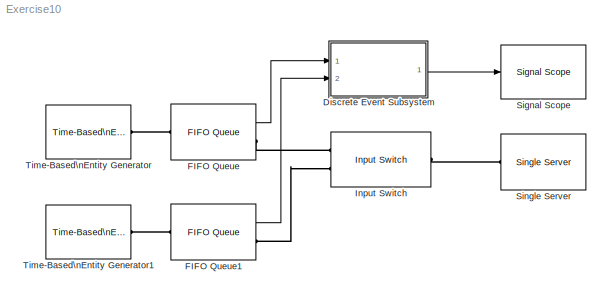
MODEL Exercise10
KIND model
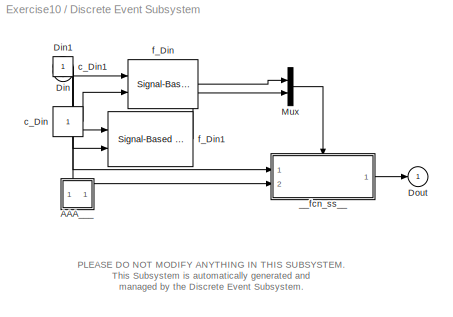
BLOCK [SubSystem] Discrete Event Subsystem
  CopyFcn = des_subsystemblock(gcb, 'copy');
  DeleteFcn = des_subsystemblock(gcb, 'delete');
  ErrorFcn = des_subsystemerror
  FunctionWithSeparateData = off
  InitFcn = des_subsystemblock(gcb, 'init');
  LoadFcn = des_subsystemblock(gcb, 'load');
  MaskHelp = helpview(simeventsbhelp);
  MaskHideContents = off
  MaskIconFrame = on
  MaskIconOpaque = on
  MaskIconRotate = none
  MaskIconUnits = autoscale
  MaskType = Discrete Event Subsystem
  MinAlgLoopOccurrences = off
  ModelCloseFcn = des_subsystemblock(gcb, 'modelclose');
  NameChangeFcn = des_subsystemblock(gcb, 'namechange');
  Opaque = off
  OpenFcn = des_subsystemblock(gcb, 'open');
  ParentCloseFcn = des_subsystemblock(gcb, 'parentclose');
  Ports = [2, 1]
  PreSaveFcn = des_subsystemblock(gcb, 'presave');
  PropExecContextOutsideSubsystem = off
  RTWSystemCode = Auto
  RequestExecContextInheritance = off
  StartFcn = des_subsystemblock(gcb, 'start');
  StopFcn = des_subsystemblock(gcb, 'stop');
  UndoDeleteFcn = des_subsystemblock(gcb, 'undodelete');
  UserData = DataTag0
  UserDataPersistent = on
BLOCK [SubSystem] Discrete Event Subsystem/AAA___
  CopyFcn = des_subsystemsupportblock(gcb, 'copy');
  DeleteFcn = des_subsystemsupportblock(gcb, 'delete');
  FunctionWithSeparateData = off
  InitFcn = des_subsystemsupportblock(gcb, 'init');
  LoadFcn = des_subsystemsupportblock(gcb, 'load');
  MaskHideContents = off
  MinAlgLoopOccurrences = off
  ModelCloseFcn = des_subsystemsupportblock(gcb, 'modelclose');
  NameChangeFcn = des_subsystemsupportblock(gcb, 'namechange');
  Opaque = off
  OpenFcn = des_subsystemsupportblock(gcb, 'open');
  ParentCloseFcn = des_subsystemsupportblock(gcb, 'parentclose');
  Ports = []
  PreSaveFcn = des_subsystemsupportblock(gcb, 'presave');
  PropExecContextOutsideSubsystem = off
  RTWSystemCode = Auto
  RequestExecContextInheritance = off
  StartFcn = des_subsystemsupportblock(gcb, 'start');
  StopFcn = des_subsystemsupportblock(gcb, 'stop');
  UndoDeleteFcn = des_subsystemsupportblock(gcb, 'undodelete');
  UserData = DataTag1
  UserDataPersistent = on
BLOCK [Inport] Discrete Event Subsystem/Din
  DataType = double
  IconDisplay = Port number
  OutDataType = sfix(16)
  OutDataTypeStr = double
  OutScaling = 2^0
  SamplingMode = Sample based
BLOCK [Inport] Discrete Event Subsystem/Din1
  DataType = double
  IconDisplay = Port number
  OutDataTypeStr = double
  Port = 2
  SamplingMode = Sample based
BLOCK [Outport] Discrete Event Subsystem/Dout
  IconDisplay = Port number
  OutDataType = sfix(16)
  OutScaling = 2^0
BLOCK [Mux] Discrete Event Subsystem/Mux
  DisplayOption = bar
  Inputs = 2
  Ports = [2, 1]
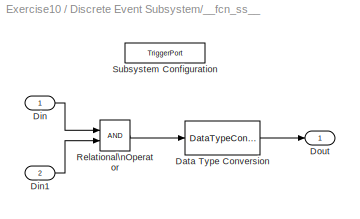
BLOCK [SubSystem] Discrete Event Subsystem/__fcn_ss__
  FunctionWithSeparateData = off
  MaskHideContents = off
  MinAlgLoopOccurrences = off
  Opaque = off
  Ports = [2, 1, 0, 1]
  PropExecContextOutsideSubsystem = on
  RTWSystemCode = Auto
  RequestExecContextInheritance = off
  TreatAsAtomicUnit = on
  UserData = DataTag2
  UserDataPersistent = on
BLOCK [DataTypeConversion] Discrete Event Subsystem/__fcn_ss__/Data Type Conversion
  OutDataType = sfix(16)
  OutDataTypeMode = double
  OutDataTypeStr = double
  OutScaling = 2^0
  RndMeth = Floor
  SaturateOnIntegerOverflow = off
BLOCK [Inport] Discrete Event Subsystem/__fcn_ss__/Din
  CopyFcn = des_subsysteminport(gcb, 'copy');
  DeleteFcn = des_subsysteminport(gcb, 'delete');
  IconDisplay = Port number
  InitFcn = des_subsysteminport(gcb, 'init');
  LoadFcn = des_subsysteminport(gcb, 'load');
  MaskCallbackString = des_subsystemmask(gcb, 'cbPermitSubsystemEvents', 'noapply');|des_subsystemmask(gcb,'cbTypeOfEvent','noapply');||des_subsystemmask(gcb, 'cbSpecifyEventPriority', 'noapply');|
  MaskDescription = Input port for a Discrete Event Subsystem block. This block can conditionally execute the subsystem upon signal-based events that meet specified criteria.
  MaskEnableString = on,on,on,on,on
  MaskHelp = helpview(simeventsbhelp);
  MaskIconFrame = on
  MaskIconOpaque = on
  MaskIconRotate = none
  MaskIconUnits = autoscale
  MaskInitialization = des_subsystemmask(gcb, 'init','apply')
  MaskPromptString = Execute subsystem upon signal-based events|Type of signal-based event:|Type of change in signal value:|Resolve simultaneous signal updates according to event priority|Event priority:
  MaskSelfModifiable = on
  MaskStyleString = checkbox,popup(Change in signal|Trigger|Sample time hit),popup(Rising|Falling|Either),checkbox,edit
  MaskTabNameString = ,,,,
  MaskToolTipString = on,on,on,on,on
  MaskTunableValueString = on,on,on,on,on
  MaskType = Discrete Event Inport
  MaskValueString = on|Sample time hit|Rising|off|20
  MaskVarAliasString = ,,,,
  MaskVariables = PermitSubsystemEvents=@1;TypeOfEvent=@2;SignalEdgeOption=@3;SpecifyEventPriority=@4;PrioritySubsystemEvent=@5;
  MaskVisibilityString = on,on,on,on,off
  ModelCloseFcn = des_subsysteminport(gcb, 'modelclose');
  NameChangeFcn = des_subsysteminport(gcb, 'namechange');
  OutDataType = sfix(16)
  OutScaling = 2^0
  ParentCloseFcn = des_subsysteminport(gcb, 'parentclose');
  PreSaveFcn = des_subsysteminport(gcb, 'presave');
  StartFcn = des_subsysteminport(gcb, 'start');
  StopFcn = des_subsysteminport(gcb, 'stop');
  UndoDeleteFcn = des_subsysteminport(gcb, 'undodelete');
  UserData = DataTag3
  UserDataPersistent = on
BLOCK [Inport] Discrete Event Subsystem/__fcn_ss__/Din1
  CopyFcn = des_subsysteminport(gcb, 'copy');
  DeleteFcn = des_subsysteminport(gcb, 'delete');
  IconDisplay = Port number
  InitFcn = des_subsysteminport(gcb, 'init');
  LoadFcn = des_subsysteminport(gcb, 'load');
  MaskCallbackString = des_subsystemmask(gcb, 'cbPermitSubsystemEvents', 'noapply');|des_subsystemmask(gcb,'cbTypeOfEvent','noapply');||des_subsystemmask(gcb, 'cbSpecifyEventPriority', 'noapply');|
  MaskDescription = Input port for a Discrete Event Subsystem block. This block can conditionally execute the subsystem upon signal-based events that meet specified criteria.
  MaskEnableString = on,on,on,on,on
  MaskHelp = helpview(simeventsbhelp);
  MaskIconFrame = on
  MaskIconOpaque = on
  MaskIconRotate = none
  MaskIconUnits = autoscale
  MaskInitialization = des_subsystemmask(gcb, 'init','apply')
  MaskPromptString = Execute subsystem upon signal-based events|Type of signal-based event:|Type of change in signal value:|Resolve simultaneous signal updates according to event priority|Event priority:
  MaskSelfModifiable = on
  MaskStyleString = checkbox,popup(Change in signal|Trigger|Sample time hit),popup(Rising|Falling|Either),checkbox,edit
  MaskTabNameString = ,,,,
  MaskToolTipString = on,on,on,on,on
  MaskTunableValueString = on,on,on,on,on
  MaskType = Discrete Event Inport
  MaskValueString = on|Sample time hit|Rising|off|20
  MaskVarAliasString = ,,,,
  MaskVariables = PermitSubsystemEvents=@1;TypeOfEvent=@2;SignalEdgeOption=@3;SpecifyEventPriority=@4;PrioritySubsystemEvent=@5;
  MaskVisibilityString = on,on,on,on,off
  ModelCloseFcn = des_subsysteminport(gcb, 'modelclose');
  NameChangeFcn = des_subsysteminport(gcb, 'namechange');
  OutDataType = sfix(16)
  OutScaling = 2^0
  ParentCloseFcn = des_subsysteminport(gcb, 'parentclose');
  Port = 2
  PreSaveFcn = des_subsysteminport(gcb, 'presave');
  StartFcn = des_subsysteminport(gcb, 'start');
  StopFcn = des_subsysteminport(gcb, 'stop');
  UndoDeleteFcn = des_subsysteminport(gcb, 'undodelete');
  UserData = DataTag4
  UserDataPersistent = on
BLOCK [Outport] Discrete Event Subsystem/__fcn_ss__/Dout
  CopyFcn = des_subsystemoutport(gcb, 'copy');
  DeleteFcn = des_subsystemoutport(gcb, 'delete');
  IconDisplay = Port number
  InitFcn = des_subsystemoutport(gcb, 'init');
  LoadFcn = des_subsystemoutport(gcb, 'load');
  MaskDescription = Provide an output port for a Discrete Event Subsystem block.
  MaskHelp = helpview(simeventsbhelp);
  MaskIconFrame = on
  MaskIconOpaque = on
  MaskIconRotate = none
  MaskIconUnits = autoscale
  MaskType = Discrete Event Outport
  ModelCloseFcn = des_subsystemoutport(gcb, 'modelclose');
  NameChangeFcn = des_subsystemoutport(gcb, 'namechange');
  OutDataType = sfix(16)
  OutScaling = 2^0
  ParentCloseFcn = des_subsystemoutport(gcb, 'parentclose');
  PreSaveFcn = des_subsystemoutport(gcb, 'presave');
  StartFcn = des_subsystemoutport(gcb, 'start');
  StopFcn = des_subsystemoutport(gcb, 'stop');
  UndoDeleteFcn = des_subsystemoutport(gcb, 'undodelete');
  UserData = DataTag6
  UserDataPersistent = on
BLOCK [RelationalOperator] Discrete Event Subsystem/__fcn_ss__/Relational\nOperator
  InputSameDT = off
  LogicOutDataTypeMode = boolean
  OutDataTypeStr = boolean
BLOCK [TriggerPort] Discrete Event Subsystem/__fcn_ss__/Subsystem Configuration
  CopyFcn = des_subsystemconfigblock(gcb, 'copy');
  DeleteFcn = des_subsystemconfigblock(gcb, 'delete');
  MaskDescription = Configuration for a Discrete Event Subsystem block. Every discrete event subsystem window must contain exactly one copy of this configuration block. Do not delete this block.
  MaskDisplay = disp('Do Not Delete');
  MaskHelp = helpview(simeventsbhelp);
  MaskIconFrame = on
  MaskIconOpaque = on
  MaskIconRotate = none
  MaskIconUnits = autoscale
  MaskType = Subsystem Configuration
  Ports = []
  StatesWhenEnabling = held
  TriggerType = function-call
  UndoDeleteFcn = des_subsystemconfigblock(gcb, 'undodelete');
  UserData = DataTag5
  UserDataPersistent = on
BLOCK [Constant] Discrete Event Subsystem/c_Din
  OutDataType = sfix(16)
  OutScaling = 2^0
BLOCK [Constant] Discrete Event Subsystem/c_Din1
BLOCK [Reference] Discrete Event Subsystem/f_Din  REF=simeventstranslate1/Signal-Based Event to\nFunction-Call Event
  DelayFunctionCall = 0
  EnableE1Port = on
  EnableE2Port = off
  EnableF2Port = off
  FunctionCallDelayFrom = Dialog
  FunctionWithSeparateData = off
  GenerateFunctionCallUpon = Sample time hit from port ts
  MaskBlockType = DESS_EVENT_PORT
  Ports = [2, 1]
  Priority = 1
  PriorityFunctionCall = 20
  RTWMemSecDataConstants = Inherit from model
  RTWMemSecDataInternal = Inherit from model
  RTWMemSecDataParameters = Inherit from model
  RTWMemSecFuncExecute = Inherit from model
  RTWMemSecFuncInitTerm = Inherit from model
  ShowPortLabels = FromPortIcon
  SignalEdgeOption = Rising
  SourceBlock = simeventstranslate1/Signal-Based Event to\nFunction-Call Event
  SourceType = Signal-Based Event to Function-Call Event
  SpecifyEventPriority = off
  StatNumberF1Calls = Off
  StatNumberF2Calls = Off
  SystemSampleTime = -1
  UserData = DataTag7
  UserDataPersistent = on
BLOCK [Reference] Discrete Event Subsystem/f_Din1  REF=simeventstranslate1/Signal-Based Event to\nFunction-Call Event
  DelayFunctionCall = 0
  EnableE1Port = on
  EnableE2Port = off
  EnableF2Port = off
  FunctionCallDelayFrom = Dialog
  FunctionWithSeparateData = off
  GenerateFunctionCallUpon = Sample time hit from port ts
  MaskBlockType = DESS_EVENT_PORT
  Ports = [2, 1]
  Priority = 1
  PriorityFunctionCall = 20
  RTWMemSecDataConstants = Inherit from model
  RTWMemSecDataInternal = Inherit from model
  RTWMemSecDataParameters = Inherit from model
  RTWMemSecFuncExecute = Inherit from model
  RTWMemSecFuncInitTerm = Inherit from model
  ShowPortLabels = FromPortIcon
  SignalEdgeOption = Rising
  SourceBlock = simeventstranslate1/Signal-Based Event to\nFunction-Call Event
  SourceType = Signal-Based Event to Function-Call Event
  SpecifyEventPriority = off
  StatNumberF1Calls = Off
  StatNumberF2Calls = Off
  SystemSampleTime = -1
  UserData = DataTag8
  UserDataPersistent = on
BLOCK [Reference] FIFO Queue  REF=simeventsqueue1/FIFO Queue
  Capacity = 25
  EnableTOPort = off
  FunctionWithSeparateData = off
  Ports = [0, 1, 0, 0, 0, 1, 1]
  Priority = 1
  RTWMemSecDataConstants = Inherit from model
  RTWMemSecDataInternal = Inherit from model
  RTWMemSecDataParameters = Inherit from model
  RTWMemSecFuncExecute = Inherit from model
  RTWMemSecFuncInitTerm = Inherit from model
  ShowPortLabels = FromPortIcon
  SourceBlock = simeventsqueue1/FIFO Queue
  SourceType = FIFO Queue
  StatAverageQueueLength = Off
  StatAverageWait = Off
  StatNumberDeparted = Off
  StatNumberInBlock = On
  StatNumberTimedout = Off
  StatPendingEntity = Off
  SystemSampleTime = -1
  UserData = DataTag9
  UserDataPersistent = on
BLOCK [Reference] FIFO Queue1  REF=simeventsqueue1/FIFO Queue
  Capacity = 25
  EnableTOPort = off
  FunctionWithSeparateData = off
  Ports = [0, 1, 0, 0, 0, 1, 1]
  Priority = 1
  RTWMemSecDataConstants = Inherit from model
  RTWMemSecDataInternal = Inherit from model
  RTWMemSecDataParameters = Inherit from model
  RTWMemSecFuncExecute = Inherit from model
  RTWMemSecFuncInitTerm = Inherit from model
  ShowPortLabels = FromPortIcon
  SourceBlock = simeventsqueue1/FIFO Queue
  SourceType = FIFO Queue
  StatAverageQueueLength = Off
  StatAverageWait = Off
  StatNumberDeparted = Off
  StatNumberInBlock = On
  StatNumberTimedout = Off
  StatPendingEntity = Off
  SystemSampleTime = -1
  UserData = DataTag10
  UserDataPersistent = on
BLOCK [Reference] Input Switch  REF=simeventsrouting1/Input Switch
  EvaluatedNumPorts = 2
  FunctionWithSeparateData = off
  InitialSeed = 23453
  NumberInputPorts = 2
  Ports = [0, 0, 0, 0, 0, 2, 1]
  Priority = 1
  PriorityInputSwitchSelectPort = 4000
  RTWMemSecDataConstants = Inherit from model
  RTWMemSecDataInternal = Inherit from model
  RTWMemSecDataParameters = Inherit from model
  RTWMemSecFuncExecute = Inherit from model
  RTWMemSecFuncInitTerm = Inherit from model
  ShowPortLabels = FromPortIcon
  SourceBlock = simeventsrouting1/Input Switch
  SourceType = Input Switch
  SpecifyEventPriority = off
  StatLastArrivalPort = Off
  StatNumberDeparted = Off
  SwitchingCriterion = Round robin
  SystemSampleTime = -1
  UserData = DataTag11
  UserDataPersistent = on
BLOCK [Reference] Signal Scope  REF=simeventssink1/Signal Scope
  AttributeNameX = Count
  AttributeNameY = Count
  AxisGrid = on
  AxisLegend = off
  AxisZoom = off
  DataPointsLimit = 10000
  DataStoreOption = Limited
  EnableEntityOutport = on
  FigurePosition = des_figposition([5 60 25 25])
  FunctionWithSeparateData = off
  InputType = Signal
  LineColors = b
  LineMarkers = .
  LineStyles = -
  NumInputs = 1
  OpenScopeAtSimStart = on
  PlotType = Stair
  Ports = [1]
  Priority = 1
  RTWMemSecDataConstants = Inherit from model
  RTWMemSecDataInternal = Inherit from model
  RTWMemSecDataParameters = Inherit from model
  RTWMemSecFuncExecute = Inherit from model
  RTWMemSecFuncInitTerm = Inherit from model
  ShowCountPlotted = off
  ShowPortLabels = FromPortIcon
  ShowToolbar = on
  SourceBlock = simeventssink1/Signal Scope
  SourceType = Signal Scope
  StatNumberArrived = Off
  SystemSampleTime = -1
  UserData = DataTag12
  UserDataPersistent = on
  XInputOptionEntity = Event time
  XInputOptionSignal = Event time
  XLabel = Time
  XLimitExceededOption = Stretch axis limits
  XMax = 10
  XMin = 0
  YLimitExceededOption = Stretch axis limits
  YMax = 10
  YMin = 0
BLOCK [Reference] Single Server  REF=simeventsserver1/Single Server
  AttributeName = ServiceTime
  CreateAttribute = on
  EnableTOPort = off
  FunctionWithSeparateData = off
  PermitPreemption = off
  Ports = [0, 0, 0, 0, 0, 1, 1]
  Priority = 1
  PriorityServiceCompletion = 500
  RTWMemSecDataConstants = Inherit from model
  RTWMemSecDataInternal = Inherit from model
  RTWMemSecDataParameters = Inherit from model
  RTWMemSecFuncExecute = Inherit from model
  RTWMemSecFuncInitTerm = Inherit from model
  ResidualAttributeName = ResidualServiceTime
  ServiceTime = 1
  ServiceTimeFrom = Dialog
  ShowPortLabels = FromPortIcon
  SortingAttributeName = PriorityAttributeName
  SortingDirection = Ascending
  SourceBlock = simeventsserver1/Single Server
  SourceType = Single Server
  StatAverageWait = Off
  StatNumberDeparted = Off
  StatNumberInBlock = Off
  StatNumberPreempted = Off
  StatNumberTimedout = Off
  StatPendingEntity = Off
  StatUtilization = Off
  SystemSampleTime = -1
  UserData = DataTag13
  UserDataPersistent = on
  WriteToAttribute = off
BLOCK [Reference] Time-Based\nEntity Generator  REF=simeventsgenerators1/Entity Generators/Time-Based\nEntity Generator
  DialogController = des_ddg_create
  DialogControllerArgs = DataTag15
  Distribution = Constant
  EntityType = Blank
  FunctionWithSeparateData = off
  GenerateEntitiesUpon = Intergeneration time from dialog
  GenerateEntityAtSimulationStart = on
  InitialSeed = 12345
  Maximum = 1
  Mean = 1
  Minimum = 0
  Period = 1
  Ports = [0, 0, 0, 0, 0, 0, 1]
  Priority = 1
  PriorityEntityGeneration = 300
  RTWMemSecDataConstants = Inherit from model
  RTWMemSecDataInternal = Inherit from model
  RTWMemSecDataParameters = Inherit from model
  RTWMemSecFuncExecute = Inherit from model
  RTWMemSecFuncInitTerm = Inherit from model
  ResponseWhenBlocked = Pause generation
  ResponseWhenUnblocked = Immediate restart
  ShowPortLabels = FromPortIcon
  SourceBlock = simeventsgenerators1/Entity Generators/Time-Based\nEntity Generator
  SourceType = Time-Based Entity Generator
  StatAverageIntergenerationTime = Off
  StatNumberDeparted = Off
  StatPendingEntity = Off
  SystemSampleTime = -1
  UserData = DataTag14
  UserDataPersistent = on
BLOCK [Reference] Time-Based\nEntity Generator1  REF=simeventsgenerators1/Entity Generators/Time-Based\nEntity Generator
  DialogController = des_ddg_create
  DialogControllerArgs = DataTag17
  Distribution = Constant
  EntityType = Blank
  FunctionWithSeparateData = off
  GenerateEntitiesUpon = Intergeneration time from dialog
  GenerateEntityAtSimulationStart = on
  InitialSeed = 12345
  Maximum = 1
  Mean = 1
  Minimum = 0
  Period = 1
  Ports = [0, 0, 0, 0, 0, 0, 1]
  Priority = 1
  PriorityEntityGeneration = 300
  RTWMemSecDataConstants = Inherit from model
  RTWMemSecDataInternal = Inherit from model
  RTWMemSecDataParameters = Inherit from model
  RTWMemSecFuncExecute = Inherit from model
  RTWMemSecFuncInitTerm = Inherit from model
  ResponseWhenBlocked = Pause generation
  ResponseWhenUnblocked = Immediate restart
  ShowPortLabels = FromPortIcon
  SourceBlock = simeventsgenerators1/Entity Generators/Time-Based\nEntity Generator
  SourceType = Time-Based Entity Generator
  StatAverageIntergenerationTime = Off
  StatNumberDeparted = Off
  StatPendingEntity = Off
  SystemSampleTime = -1
  UserData = DataTag16
  UserDataPersistent = on
ANNOTATION Discrete Event Subsystem: PLEASE DO NOT MODIFY ANYTHING IN THIS SUBSYSTEM.\nThis Subsystem is automatically generated and \nmanaged by the Discrete Event Subsystem.
NET Discrete Event Subsystem/Din1:1 -> Discrete Event Subsystem/__fcn_ss__:2, Discrete Event Subsystem/f_Din1:1
NET Discrete Event Subsystem/Din:1 -> Discrete Event Subsystem/__fcn_ss__:1, Discrete Event Subsystem/f_Din:1
LINE Discrete Event Subsystem/Mux:1 -> Discrete Event Subsystem/__fcn_ss__:trigger
LINE Discrete Event Subsystem/__fcn_ss__/Data Type Conversion:1 -> Discrete Event Subsystem/__fcn_ss__/Dout:1
LINE Discrete Event Subsystem/__fcn_ss__/Din1:1 -> Discrete Event Subsystem/__fcn_ss__/Relational\nOperator:2
LINE Discrete Event Subsystem/__fcn_ss__/Din:1 -> Discrete Event Subsystem/__fcn_ss__/Relational\nOperator:1
LINE Discrete Event Subsystem/__fcn_ss__/Relational\nOperator:1 -> Discrete Event Subsystem/__fcn_ss__/Data Type Conversion:1
LINE Discrete Event Subsystem/__fcn_ss__:1 -> Discrete Event Subsystem/Dout:1
LINE Discrete Event Subsystem/c_Din1:1 -> Discrete Event Subsystem/f_Din1:2
LINE Discrete Event Subsystem/c_Din:1 -> Discrete Event Subsystem/f_Din:2
LINE Discrete Event Subsystem/f_Din1:1 -> Discrete Event Subsystem/Mux:2
LINE Discrete Event Subsystem/f_Din:1 -> Discrete Event Subsystem/Mux:1
LINE Discrete Event Subsystem:1 -> Signal Scope:1
LINE FIFO Queue1:1 -> Discrete Event Subsystem:2
LINE FIFO Queue:1 -> Discrete Event Subsystem:1
PLINE FIFO Queue1:LConn1 -- Time-Based\nEntity Generator1:RConn1
PLINE FIFO Queue1:RConn1 -- Input Switch:LConn2
PLINE FIFO Queue:LConn1 -- Time-Based\nEntity Generator:RConn1
PLINE FIFO Queue:RConn1 -- Input Switch:LConn1
PLINE Input Switch:RConn1 -- Single Server:LConn1
note: NET lines group one-source signal fan-out (src -> all destinations, sorted); 1:1 wires keep LINE
